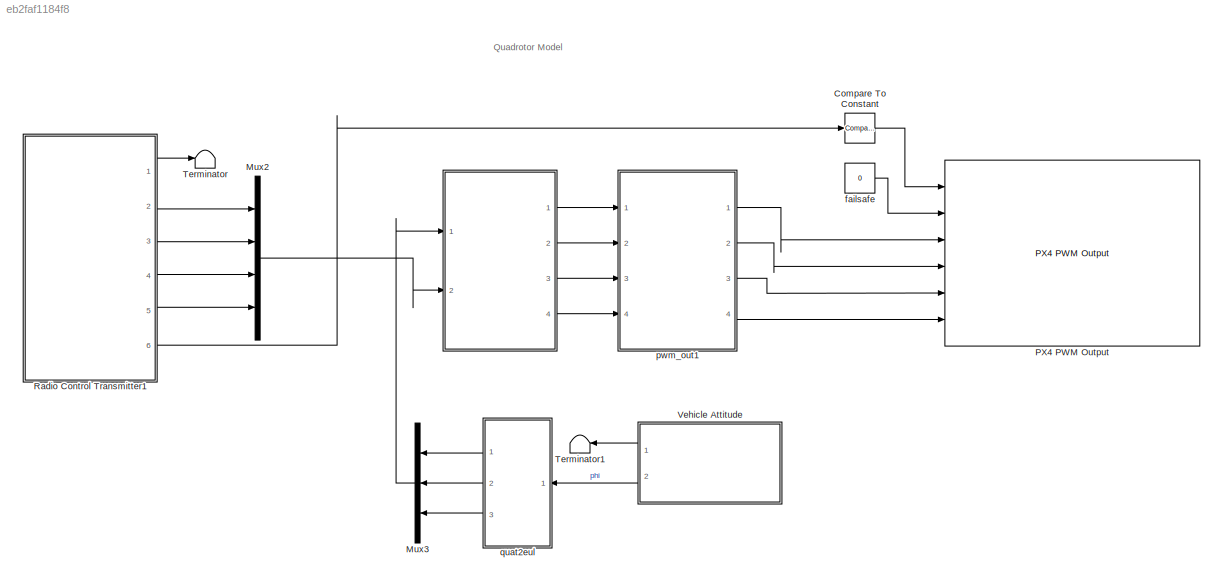
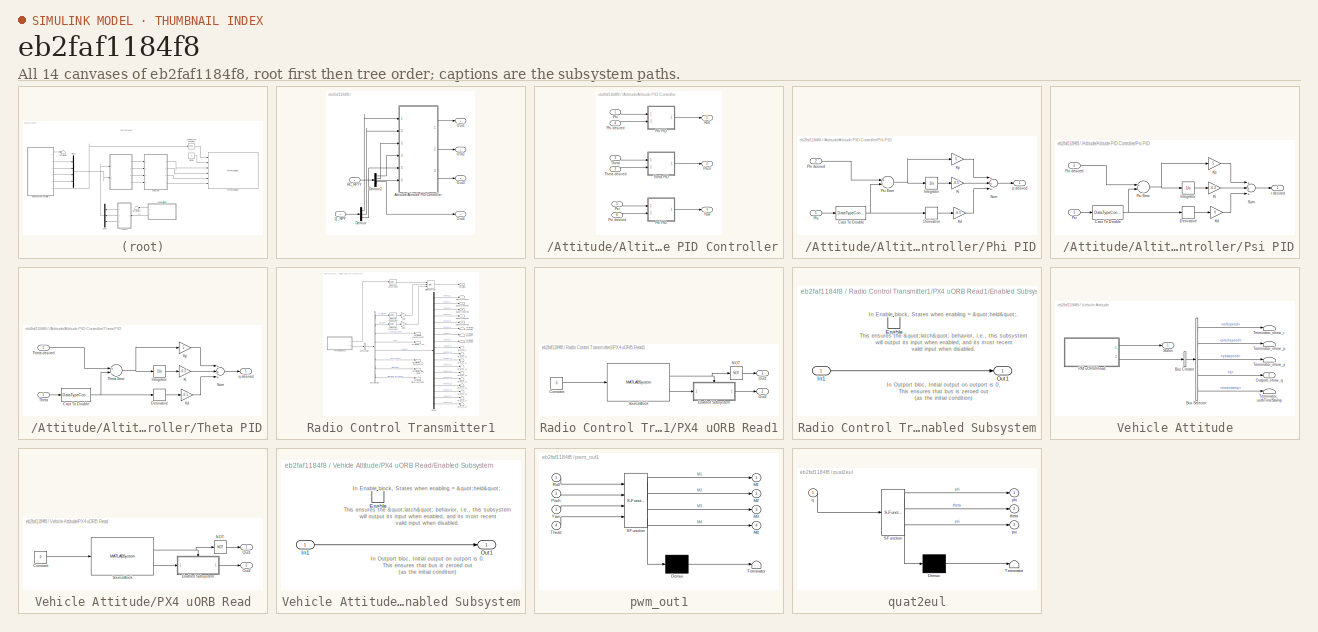
[diagram: thumbnail index - all 14 canvases of the model, root first then tree order]
MODEL slx_eb2faf1184f8
KIND model
CONFIG AbsTol = auto
CONFIG EnableMultiTasking = on
CONFIG FixedStep = 1
CONFIG MaxStep = auto
CONFIG MinStep = auto
CONFIG RelTol = 1e-3
CONFIG SampleTimeConstraint = Unconstrained
CONFIG Solver = FixedStepAuto
CONFIG SolverName = FixedStepAuto
CONFIG StartTime = 0.0
CONFIG StopTime = 10
BLOCK [SubSystem]  
  Ports = [2, 4]
  RequestExecContextInheritance = off
BLOCK [SubSystem]  /Attitude//Altitude PID Controller
  Ports = [6, 3]
  RequestExecContextInheritance = off
BLOCK [Inport]  /Attitude//Altitude PID Controller/Phi
  IconDisplay = Port number
BLOCK [SubSystem]  /Attitude//Altitude PID Controller/Phi PID
  Ports = [2, 1]
  RequestExecContextInheritance = off
BLOCK [DataTypeConversion]  /Attitude//Altitude PID Controller/Phi PID/Cast To Double
  OutDataTypeStr = double
  RndMeth = Floor
  SaturateOnIntegerOverflow = off
BLOCK [Derivative]  /Attitude//Altitude PID Controller/Phi PID/Derivative
BLOCK [Integrator]  /Attitude//Altitude PID Controller/Phi PID/Integrator
  Ports = [1, 1]
BLOCK [Gain]  /Attitude//Altitude PID Controller/Phi PID/Kd
  Gain = -0.5
  OutDataTypeStr = Inherit: Inherit via internal rule
  ParamDataTypeStr = Inherit: Inherit via internal rule
  SaturateOnIntegerOverflow = off
BLOCK [Gain]  /Attitude//Altitude PID Controller/Phi PID/Ki
  Gain = -0.5
  OutDataTypeStr = Inherit: Inherit via internal rule
  ParamDataTypeStr = Inherit: Inherit via internal rule
  SaturateOnIntegerOverflow = off
BLOCK [Gain]  /Attitude//Altitude PID Controller/Phi PID/Kp
  Gain = 5
  OutDataTypeStr = Inherit: Inherit via internal rule
  ParamDataTypeStr = Inherit: Inherit via internal rule
  SaturateOnIntegerOverflow = off
BLOCK [Inport]  /Attitude//Altitude PID Controller/Phi PID/Phi
  IconDisplay = Port number
BLOCK [Inport]  /Attitude//Altitude PID Controller/Phi PID/Phi desired
  IconDisplay = Port number
  Port = 2
BLOCK [Sum]  /Attitude//Altitude PID Controller/Phi PID/Psi Error
  InputSameDT = off
  Inputs = +-
  OutDataTypeStr = Inherit: Inherit via internal rule
  Ports = [2, 1]
  SaturateOnIntegerOverflow = off
BLOCK [Sum]  /Attitude//Altitude PID Controller/Phi PID/Sum
  InputSameDT = off
  Inputs = +++
  OutDataTypeStr = Inherit: Inherit via internal rule
  Ports = [3, 1]
  SaturateOnIntegerOverflow = off
BLOCK [Outport]  /Attitude//Altitude PID Controller/Phi PID/p desired
  IconDisplay = Port number
BLOCK [Inport]  /Attitude//Altitude PID Controller/Phi desired
  IconDisplay = Port number
  Port = 4
BLOCK [Outport]  /Attitude//Altitude PID Controller/Pitch
  IconDisplay = Port number
  Port = 2
BLOCK [Inport]  /Attitude//Altitude PID Controller/Psi
  IconDisplay = Port number
  Port = 5
BLOCK [SubSystem]  /Attitude//Altitude PID Controller/Psi PID
  Ports = [2, 1]
  RequestExecContextInheritance = off
BLOCK [DataTypeConversion]  /Attitude//Altitude PID Controller/Psi PID/Cast To Double
  OutDataTypeStr = double
  RndMeth = Floor
  SaturateOnIntegerOverflow = off
BLOCK [Derivative]  /Attitude//Altitude PID Controller/Psi PID/Derivative
BLOCK [Integrator]  /Attitude//Altitude PID Controller/Psi PID/Integrator
  Ports = [1, 1]
BLOCK [Gain]  /Attitude//Altitude PID Controller/Psi PID/Kd
  Gain = 0
  OutDataTypeStr = Inherit: Inherit via internal rule
  ParamDataTypeStr = Inherit: Inherit via internal rule
  SaturateOnIntegerOverflow = off
BLOCK [Gain]  /Attitude//Altitude PID Controller/Psi PID/Ki
  Gain = -0.2
  OutDataTypeStr = Inherit: Inherit via internal rule
  ParamDataTypeStr = Inherit: Inherit via internal rule
  SaturateOnIntegerOverflow = off
BLOCK [Gain]  /Attitude//Altitude PID Controller/Psi PID/Kp
  Gain = 5
  OutDataTypeStr = Inherit: Inherit via internal rule
  ParamDataTypeStr = Inherit: Inherit via internal rule
  SaturateOnIntegerOverflow = off
BLOCK [Inport]  /Attitude//Altitude PID Controller/Psi PID/Psi
  IconDisplay = Port number
BLOCK [Sum]  /Attitude//Altitude PID Controller/Psi PID/Psi Error
  InputSameDT = off
  Inputs = +-
  OutDataTypeStr = Inherit: Inherit via internal rule
  Ports = [2, 1]
  SaturateOnIntegerOverflow = off
BLOCK [Inport]  /Attitude//Altitude PID Controller/Psi PID/Psi desired
  IconDisplay = Port number
  Port = 2
BLOCK [Sum]  /Attitude//Altitude PID Controller/Psi PID/Sum
  InputSameDT = off
  Inputs = +++
  OutDataTypeStr = Inherit: Inherit via internal rule
  Ports = [3, 1]
  SaturateOnIntegerOverflow = off
BLOCK [Outport]  /Attitude//Altitude PID Controller/Psi PID/r desired
  IconDisplay = Port number
BLOCK [Inport]  /Attitude//Altitude PID Controller/Psi desired
  IconDisplay = Port number
  Port = 6
BLOCK [Outport]  /Attitude//Altitude PID Controller/Roll
  IconDisplay = Port number
BLOCK [Inport]  /Attitude//Altitude PID Controller/Theta
  IconDisplay = Port number
  Port = 2
BLOCK [SubSystem]  /Attitude//Altitude PID Controller/Theta PID
  Ports = [2, 1]
  RequestExecContextInheritance = off
BLOCK [DataTypeConversion]  /Attitude//Altitude PID Controller/Theta PID/Cast To Double
  OutDataTypeStr = double
  RndMeth = Floor
  SaturateOnIntegerOverflow = off
BLOCK [Derivative]  /Attitude//Altitude PID Controller/Theta PID/Derivative
BLOCK [Integrator]  /Attitude//Altitude PID Controller/Theta PID/Integrator
  Ports = [1, 1]
BLOCK [Gain]  /Attitude//Altitude PID Controller/Theta PID/Kd
  Gain = -0.5
  OutDataTypeStr = Inherit: Inherit via internal rule
  ParamDataTypeStr = Inherit: Inherit via internal rule
  SaturateOnIntegerOverflow = off
BLOCK [Gain]  /Attitude//Altitude PID Controller/Theta PID/Ki
  Gain = -0.5
  OutDataTypeStr = Inherit: Inherit via internal rule
  ParamDataTypeStr = Inherit: Inherit via internal rule
  SaturateOnIntegerOverflow = off
BLOCK [Gain]  /Attitude//Altitude PID Controller/Theta PID/Kp
  Gain = 5
  OutDataTypeStr = Inherit: Inherit via internal rule
  ParamDataTypeStr = Inherit: Inherit via internal rule
  SaturateOnIntegerOverflow = off
BLOCK [Sum]  /Attitude//Altitude PID Controller/Theta PID/Sum
  InputSameDT = off
  Inputs = +++
  OutDataTypeStr = Inherit: Inherit via internal rule
  Ports = [3, 1]
  SaturateOnIntegerOverflow = off
BLOCK [Inport]  /Attitude//Altitude PID Controller/Theta PID/Theta
  IconDisplay = Port number
BLOCK [Sum]  /Attitude//Altitude PID Controller/Theta PID/Theta Error
  InputSameDT = off
  Inputs = +-
  OutDataTypeStr = Inherit: Inherit via internal rule
  Ports = [2, 1]
  SaturateOnIntegerOverflow = off
BLOCK [Inport]  /Attitude//Altitude PID Controller/Theta PID/Theta desired
  IconDisplay = Port number
  Port = 2
BLOCK [Outport]  /Attitude//Altitude PID Controller/Theta PID/q desired
  IconDisplay = Port number
BLOCK [Inport]  /Attitude//Altitude PID Controller/Theta desired
  IconDisplay = Port number
  Port = 3
BLOCK [Outport]  /Attitude//Altitude PID Controller/Yaw
  IconDisplay = Port number
  Port = 3
BLOCK [Demux]  /Demux
  DisplayOption = bar
  Outputs = 3
  Ports = [1, 3]
BLOCK [Demux]  /Demux2
  DisplayOption = bar
  Ports = [1, 4]
BLOCK [Outport]  /Out1
  IconDisplay = Port number
BLOCK [Outport]  /Out2
  IconDisplay = Port number
  Port = 2
BLOCK [Outport]  /Out3
  IconDisplay = Port number
  Port = 3
BLOCK [Outport]  /Out4
  IconDisplay = Port number
  Port = 4
BLOCK [Inport]  /Q_RPY
  IconDisplay = Port number
BLOCK [Inport]  /RC_RPTY
  IconDisplay = Port number
  Port = 2
BLOCK [Reference] Compare To Constant  REF=simulink/Logic and Bit
Operations/Compare
To Constant
  Ports = [1, 1]
  SourceBlock = simulink/Logic and Bit\nOperations/Compare\nTo Constant
  SourceProductBaseCode = SL
  SourceProductName = Simulink
  SourceType = Compare To Constant
BLOCK [Mux] Mux2
  DisplayOption = bar
  Ports = [4, 1]
BLOCK [Mux] Mux3
  DisplayOption = bar
  Inputs = 3
  Ports = [3, 1]
BLOCK [Reference] PX4 PWM Output  REF=px4lib/PX4 PWM Output
  Ports = [6]
  SourceBlock = px4lib/PX4 PWM Output
  SourceProductBaseCode = PX4AUTOPILOTS
  SourceProductName = Embedded Coder Support Package for PX4 Autopilots
  SourceType = PX4 PWM Output
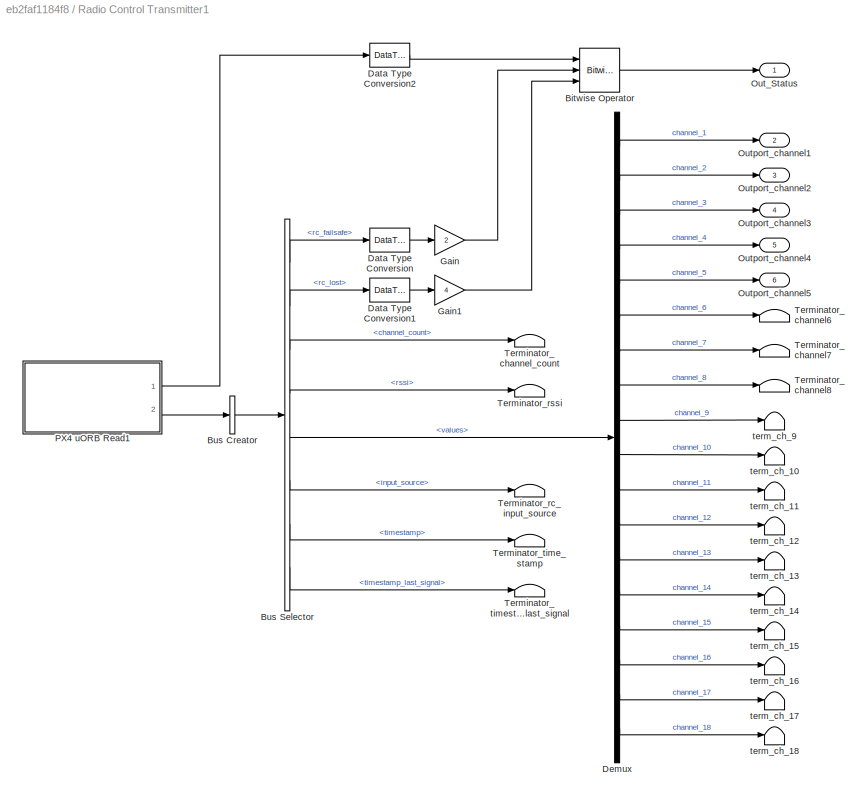
BLOCK [SubSystem] Radio Control Transmitter1
  AncestorBlock = px4Sensorslib/Radio Control Transmitter
  Ports = [0, 6]
  RequestExecContextInheritance = off
BLOCK [Reference] Radio Control Transmitter1/Bitwise Operator  REF=simulink/Logic and Bit
Operations/Bitwise
Operator
  Ports = [3, 1]
  SourceBlock = simulink/Logic and Bit\nOperations/Bitwise\nOperator
  SourceProductBaseCode = SL
  SourceProductName = Simulink
  SourceType = Bitwise Operator
BLOCK [BusCreator] Radio Control Transmitter1/Bus Creator
  DisplayOption = bar
  InheritFromInputs = on
  Inputs = 1
  Ports = [1, 1]
BLOCK [BusSelector] Radio Control Transmitter1/Bus Selector
  OutputAsBus = off
  OutputSignals = rc_failsafe,rc_lost,channel_count,rssi,values,input_source,timestamp,timestamp_last_signal
  Ports = [1, 8]
BLOCK [DataTypeConversion] Radio Control Transmitter1/Data Type Conversion
  OutDataTypeStr = uint8
  RndMeth = Floor
  SaturateOnIntegerOverflow = off
BLOCK [DataTypeConversion] Radio Control Transmitter1/Data Type Conversion1
  OutDataTypeStr = uint8
  RndMeth = Floor
  SaturateOnIntegerOverflow = off
BLOCK [DataTypeConversion] Radio Control Transmitter1/Data Type Conversion2
  OutDataTypeStr = uint8
  RndMeth = Floor
  SaturateOnIntegerOverflow = off
BLOCK [Demux] Radio Control Transmitter1/Demux
  DisplayOption = bar
  Outputs = 18
  Ports = [1, 18]
BLOCK [Gain] Radio Control Transmitter1/Gain
  Gain = 2
  OutDataTypeStr = uint8
  ParamDataTypeStr = Inherit: Inherit via internal rule
  SaturateOnIntegerOverflow = off
BLOCK [Gain] Radio Control Transmitter1/Gain1
  Gain = 4
  OutDataTypeStr = uint8
  ParamDataTypeStr = Inherit: Inherit via internal rule
  SaturateOnIntegerOverflow = off
BLOCK [Outport] Radio Control Transmitter1/Out_Status
  IconDisplay = Port number
BLOCK [Outport] Radio Control Transmitter1/Outport_channel1
  IconDisplay = Port number
  Port = 2
BLOCK [Outport] Radio Control Transmitter1/Outport_channel2
  IconDisplay = Port number
  Port = 3
BLOCK [Outport] Radio Control Transmitter1/Outport_channel3
  IconDisplay = Port number
  Port = 4
BLOCK [Outport] Radio Control Transmitter1/Outport_channel4
  IconDisplay = Port number
  Port = 5
BLOCK [Outport] Radio Control Transmitter1/Outport_channel5
  IconDisplay = Port number
  Port = 6
BLOCK [SubSystem] Radio Control Transmitter1/PX4 uORB Read1
  AncestorBlock = px4uORBlib/PX4 uORB Read
  ModelCloseFcn = px4.internal.block.SubscribeBlockMask.dispatch('modelCloseFcn', gcb);
  Ports = [0, 2]
  RequestExecContextInheritance = off
BLOCK [Constant] Radio Control Transmitter1/PX4 uORB Read1/Constant
  SampleTime = -1
  Value = 0
BLOCK [SubSystem] Radio Control Transmitter1/PX4 uORB Read1/Enabled Subsystem
  Ports = [1, 1, 1]
  RequestExecContextInheritance = off
  TreatAsAtomicUnit = on
BLOCK [EnablePort] Radio Control Transmitter1/PX4 uORB Read1/Enabled Subsystem/Enable
  Ports = []
BLOCK [Inport] Radio Control Transmitter1/PX4 uORB Read1/Enabled Subsystem/In1
  IconDisplay = Port number
BLOCK [Outport] Radio Control Transmitter1/PX4 uORB Read1/Enabled Subsystem/Out1
  IconDisplay = Port number
  InitialOutput = 0
BLOCK [Logic] Radio Control Transmitter1/PX4 uORB Read1/NOT
  AllPortsSameDT = off
  IconShape = distinctive
  Operator = NOT
  OutDataTypeStr = boolean
  Ports = [1, 1]
BLOCK [Outport] Radio Control Transmitter1/PX4 uORB Read1/Out1
  IconDisplay = Port number
BLOCK [Outport] Radio Control Transmitter1/PX4 uORB Read1/Out2
  IconDisplay = Port number
  Port = 2
BLOCK [MATLABSystem] Radio Control Transmitter1/PX4 uORB Read1/SourceBlock
  BlockTimeout = 1e-3
  BlockingMode = off
  InitFcn = px4.internal.block.SubscribeBlockMask.dispatch('sysobjInitFcn', gcb);
  MaskDisplay = disp('Subscriber');\nport_label('input',1,'busstruct');\nport_label('output',1,'isNewData');\nport_label('output',2,'msg');
  MaskType = px4.internal.block.Subscriber
  Ports = [1, 2]
  SLBusName = px4_Bus_input_rc
  SampleTime = -1
  System = px4.internal.block.Subscriber
  uORBTopic = input_rc
BLOCK [Terminator] Radio Control Transmitter1/Terminator_channel6
BLOCK [Terminator] Radio Control Transmitter1/Terminator_channel7
BLOCK [Terminator] Radio Control Transmitter1/Terminator_channel8
BLOCK [Terminator] Radio Control Transmitter1/Terminator_channel_count
BLOCK [Terminator] Radio Control Transmitter1/Terminator_rc_input_source
BLOCK [Terminator] Radio Control Transmitter1/Terminator_rssi
BLOCK [Terminator] Radio Control Transmitter1/Terminator_time_stamp
BLOCK [Terminator] Radio Control Transmitter1/Terminator_timestamp_last_signal
BLOCK [Terminator] Radio Control Transmitter1/term_ch_10 
BLOCK [Terminator] Radio Control Transmitter1/term_ch_11
BLOCK [Terminator] Radio Control Transmitter1/term_ch_12
BLOCK [Terminator] Radio Control Transmitter1/term_ch_13
BLOCK [Terminator] Radio Control Transmitter1/term_ch_14
BLOCK [Terminator] Radio Control Transmitter1/term_ch_15
BLOCK [Terminator] Radio Control Transmitter1/term_ch_16
BLOCK [Terminator] Radio Control Transmitter1/term_ch_17
BLOCK [Terminator] Radio Control Transmitter1/term_ch_18
BLOCK [Terminator] Radio Control Transmitter1/term_ch_9
BLOCK [Terminator] Terminator
BLOCK [Terminator] Terminator1
BLOCK [SubSystem] Vehicle Attitude
  AncestorBlock = px4Sensorslib/Vehicle Attitude
  Ports = [0, 2]
  RequestExecContextInheritance = off
BLOCK [BusCreator] Vehicle Attitude/Bus Creator
  DisplayOption = bar
  InheritFromInputs = on
  Inputs = 1
  Ports = [1, 1]
BLOCK [BusSelector] Vehicle Attitude/Bus Selector
  OutputAsBus = off
  OutputSignals = rollspeed,pitchspeed,yawspeed,q,timestamp
  Ports = [1, 5]
BLOCK [Outport] Vehicle Attitude/Outport_show_q
  IconDisplay = Port number
  Port = 2
BLOCK [SubSystem] Vehicle Attitude/PX4 uORB Read
  AncestorBlock = px4uORBlib/PX4 uORB Read
  ModelCloseFcn = px4.internal.block.SubscribeBlockMask.dispatch('modelCloseFcn', gcb);
  Ports = [0, 2]
  RequestExecContextInheritance = off
BLOCK [Constant] Vehicle Attitude/PX4 uORB Read/Constant
  SampleTime = -1
  Value = 0
BLOCK [SubSystem] Vehicle Attitude/PX4 uORB Read/Enabled Subsystem
  Ports = [1, 1, 1]
  RequestExecContextInheritance = off
  TreatAsAtomicUnit = on
BLOCK [EnablePort] Vehicle Attitude/PX4 uORB Read/Enabled Subsystem/Enable
  Ports = []
BLOCK [Inport] Vehicle Attitude/PX4 uORB Read/Enabled Subsystem/In1
  IconDisplay = Port number
BLOCK [Outport] Vehicle Attitude/PX4 uORB Read/Enabled Subsystem/Out1
  IconDisplay = Port number
  InitialOutput = 0
BLOCK [Logic] Vehicle Attitude/PX4 uORB Read/NOT
  AllPortsSameDT = off
  IconShape = distinctive
  Operator = NOT
  OutDataTypeStr = boolean
  Ports = [1, 1]
BLOCK [Outport] Vehicle Attitude/PX4 uORB Read/Out1
  IconDisplay = Port number
BLOCK [Outport] Vehicle Attitude/PX4 uORB Read/Out2
  IconDisplay = Port number
  Port = 2
BLOCK [MATLABSystem] Vehicle Attitude/PX4 uORB Read/SourceBlock
  BlockTimeout = 0.001
  BlockingMode = off
  InitFcn = px4.internal.block.SubscribeBlockMask.dispatch('sysobjInitFcn', gcb);
  MaskDisplay = disp('Subscriber');\nport_label('input',1,'busstruct');\nport_label('output',1,'isNewData');\nport_label('output',2,'msg');
  MaskType = px4.internal.block.Subscriber
  Ports = [1, 2]
  SLBusName = px4_Bus_vehicle_attitude
  SampleTime = -1
  System = px4.internal.block.Subscriber
  uORBTopic = vehicle_attitude
BLOCK [Outport] Vehicle Attitude/Status
  IconDisplay = Port number
BLOCK [Terminator] Vehicle Attitude/Terminator_show_p
BLOCK [Terminator] Vehicle Attitude/Terminator_show_r
BLOCK [Terminator] Vehicle Attitude/Terminator_show_y
BLOCK [Terminator] Vehicle Attitude/Terminator_uorbTimeStamp
BLOCK [Constant] failsafe
  OutDataTypeStr = boolean
  SampleTime = -1
  Value = 0
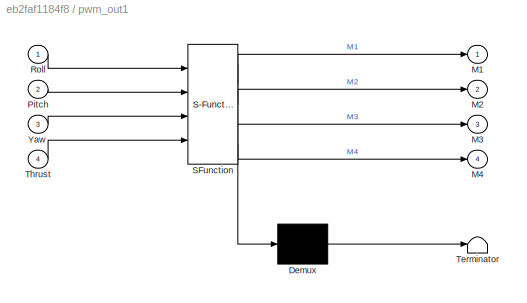
BLOCK [SubSystem] pwm_out1
  ErrorFcn = Stateflow.Translate.translate
  PermitHierarchicalResolution = ExplicitOnly
  Ports = [4, 4]
  RequestExecContextInheritance = off
  SFBlockType = MATLAB Function
  TreatAsAtomicUnit = on
BLOCK [Demux] pwm_out1/ Demux 
  Outputs = 1
  Ports = [1, 1]
BLOCK [S-Function] pwm_out1/ SFunction 
  EnableBusSupport = off
  FunctionName = sf_sfun
  PortCounts = [4 5]
  Ports = [4, 5]
  SFcnIsStateOwnerBlock = off
  SFunctionDeploymentMode = off
  Tag = Stateflow S-Function quadrotorsim_Equations_New_V6B_RC_Only_4_30 4
BLOCK [Terminator] pwm_out1/ Terminator 
BLOCK [Outport] pwm_out1/M1
  IconDisplay = Port number
BLOCK [Outport] pwm_out1/M2
  IconDisplay = Port number
  Port = 2
BLOCK [Outport] pwm_out1/M3
  IconDisplay = Port number
  Port = 3
BLOCK [Outport] pwm_out1/M4
  IconDisplay = Port number
  Port = 4
BLOCK [Inport] pwm_out1/Pitch
  IconDisplay = Port number
  Port = 2
BLOCK [Inport] pwm_out1/Roll
  IconDisplay = Port number
BLOCK [Inport] pwm_out1/Thrust
  IconDisplay = Port number
  Port = 4
BLOCK [Inport] pwm_out1/Yaw
  IconDisplay = Port number
  Port = 3
BLOCK [SubSystem] quat2eul
  ErrorFcn = Stateflow.Translate.translate
  PermitHierarchicalResolution = ExplicitOnly
  Ports = [1, 3]
  RequestExecContextInheritance = off
  SFBlockType = MATLAB Function
  TreatAsAtomicUnit = on
BLOCK [Demux] quat2eul/ Demux 
  Outputs = 1
  Ports = [1, 1]
BLOCK [S-Function] quat2eul/ SFunction 
  EnableBusSupport = off
  FunctionName = sf_sfun
  PortCounts = [1 4]
  Ports = [1, 4]
  SFcnIsStateOwnerBlock = off
  SFunctionDeploymentMode = off
  Tag = Stateflow S-Function quadrotorsim_Equations_New_V6B_RC_Only_4_30 10
BLOCK [Terminator] quat2eul/ Terminator 
BLOCK [Outport] quat2eul/phi
  IconDisplay = Port number
BLOCK [Outport] quat2eul/psi
  IconDisplay = Port number
  Port = 3
BLOCK [Inport] quat2eul/q
  IconDisplay = Port number
BLOCK [Outport] quat2eul/theta
  IconDisplay = Port number
  Port = 2
ANNOTATION (root): Quadrotor Model
ANNOTATION Radio Control Transmitter1/PX4 uORB Read1/Enabled Subsystem: In Enable block, States when enabling = "held". This ensures the "latch" behavior, i.e., this subsystem will output its input when enabled, and its most recent valid input when disabled.
ANNOTATION Radio Control Transmitter1/PX4 uORB Read1/Enabled Subsystem: In Outport bloc, Initial output on outport is 0. This ensures that bus is zeroed out (as the initial condition)
ANNOTATION Vehicle Attitude/PX4 uORB Read/Enabled Subsystem: In Enable block, States when enabling = "held". This ensures the "latch" behavior, i.e., this subsystem will output its input when enabled, and its most recent valid input when disabled.
ANNOTATION Vehicle Attitude/PX4 uORB Read/Enabled Subsystem: In Outport bloc, Initial output on outport is 0. This ensures that bus is zeroed out (as the initial condition)
NET  /Attitude//Altitude PID Controller/Phi PID/Cast To Double:1 ->  /Attitude//Altitude PID Controller/Phi PID/Derivative:1,  /Attitude//Altitude PID Controller/Phi PID/Psi Error:2
LINE  /Attitude//Altitude PID Controller/Phi PID/Derivative:1 ->  /Attitude//Altitude PID Controller/Phi PID/Kd:1
LINE  /Attitude//Altitude PID Controller/Phi PID/Integrator:1 ->  /Attitude//Altitude PID Controller/Phi PID/Ki:1
LINE  /Attitude//Altitude PID Controller/Phi PID/Kd:1 ->  /Attitude//Altitude PID Controller/Phi PID/Sum:3
LINE  /Attitude//Altitude PID Controller/Phi PID/Ki:1 ->  /Attitude//Altitude PID Controller/Phi PID/Sum:2
LINE  /Attitude//Altitude PID Controller/Phi PID/Kp:1 ->  /Attitude//Altitude PID Controller/Phi PID/Sum:1
LINE  /Attitude//Altitude PID Controller/Phi PID/Phi desired:1 ->  /Attitude//Altitude PID Controller/Phi PID/Psi Error:1
LINE  /Attitude//Altitude PID Controller/Phi PID/Phi:1 ->  /Attitude//Altitude PID Controller/Phi PID/Cast To Double:1
NET  /Attitude//Altitude PID Controller/Phi PID/Psi Error:1 ->  /Attitude//Altitude PID Controller/Phi PID/Integrator:1,  /Attitude//Altitude PID Controller/Phi PID/Kp:1
LINE  /Attitude//Altitude PID Controller/Phi PID/Sum:1 ->  /Attitude//Altitude PID Controller/Phi PID/p desired:1
LINE  /Attitude//Altitude PID Controller/Phi PID:1 ->  /Attitude//Altitude PID Controller/Roll:1
LINE  /Attitude//Altitude PID Controller/Phi desired:1 ->  /Attitude//Altitude PID Controller/Phi PID:2
LINE  /Attitude//Altitude PID Controller/Phi:1 ->  /Attitude//Altitude PID Controller/Phi PID:1
NET  /Attitude//Altitude PID Controller/Psi PID/Cast To Double:1 ->  /Attitude//Altitude PID Controller/Psi PID/Derivative:1,  /Attitude//Altitude PID Controller/Psi PID/Psi Error:2
LINE  /Attitude//Altitude PID Controller/Psi PID/Derivative:1 ->  /Attitude//Altitude PID Controller/Psi PID/Kd:1
LINE  /Attitude//Altitude PID Controller/Psi PID/Integrator:1 ->  /Attitude//Altitude PID Controller/Psi PID/Ki:1
LINE  /Attitude//Altitude PID Controller/Psi PID/Kd:1 ->  /Attitude//Altitude PID Controller/Psi PID/Sum:3
LINE  /Attitude//Altitude PID Controller/Psi PID/Ki:1 ->  /Attitude//Altitude PID Controller/Psi PID/Sum:2
LINE  /Attitude//Altitude PID Controller/Psi PID/Kp:1 ->  /Attitude//Altitude PID Controller/Psi PID/Sum:1
NET  /Attitude//Altitude PID Controller/Psi PID/Psi Error:1 ->  /Attitude//Altitude PID Controller/Psi PID/Integrator:1,  /Attitude//Altitude PID Controller/Psi PID/Kp:1
LINE  /Attitude//Altitude PID Controller/Psi PID/Psi desired:1 ->  /Attitude//Altitude PID Controller/Psi PID/Psi Error:1
LINE  /Attitude//Altitude PID Controller/Psi PID/Psi:1 ->  /Attitude//Altitude PID Controller/Psi PID/Cast To Double:1
LINE  /Attitude//Altitude PID Controller/Psi PID/Sum:1 ->  /Attitude//Altitude PID Controller/Psi PID/r desired:1
LINE  /Attitude//Altitude PID Controller/Psi PID:1 ->  /Attitude//Altitude PID Controller/Yaw:1
LINE  /Attitude//Altitude PID Controller/Psi desired:1 ->  /Attitude//Altitude PID Controller/Psi PID:2
LINE  /Attitude//Altitude PID Controller/Psi:1 ->  /Attitude//Altitude PID Controller/Psi PID:1
NET  /Attitude//Altitude PID Controller/Theta PID/Cast To Double:1 ->  /Attitude//Altitude PID Controller/Theta PID/Derivative:1,  /Attitude//Altitude PID Controller/Theta PID/Theta Error:2
LINE  /Attitude//Altitude PID Controller/Theta PID/Derivative:1 ->  /Attitude//Altitude PID Controller/Theta PID/Kd:1
LINE  /Attitude//Altitude PID Controller/Theta PID/Integrator:1 ->  /Attitude//Altitude PID Controller/Theta PID/Ki:1
LINE  /Attitude//Altitude PID Controller/Theta PID/Kd:1 ->  /Attitude//Altitude PID Controller/Theta PID/Sum:3
LINE  /Attitude//Altitude PID Controller/Theta PID/Ki:1 ->  /Attitude//Altitude PID Controller/Theta PID/Sum:2
LINE  /Attitude//Altitude PID Controller/Theta PID/Kp:1 ->  /Attitude//Altitude PID Controller/Theta PID/Sum:1
LINE  /Attitude//Altitude PID Controller/Theta PID/Sum:1 ->  /Attitude//Altitude PID Controller/Theta PID/q desired:1
NET  /Attitude//Altitude PID Controller/Theta PID/Theta Error:1 ->  /Attitude//Altitude PID Controller/Theta PID/Integrator:1,  /Attitude//Altitude PID Controller/Theta PID/Kp:1
LINE  /Attitude//Altitude PID Controller/Theta PID/Theta desired:1 ->  /Attitude//Altitude PID Controller/Theta PID/Theta Error:1
LINE  /Attitude//Altitude PID Controller/Theta PID/Theta:1 ->  /Attitude//Altitude PID Controller/Theta PID/Cast To Double:1
LINE  /Attitude//Altitude PID Controller/Theta PID:1 ->  /Attitude//Altitude PID Controller/Pitch:1
LINE  /Attitude//Altitude PID Controller/Theta desired:1 ->  /Attitude//Altitude PID Controller/Theta PID:2
LINE  /Attitude//Altitude PID Controller/Theta:1 ->  /Attitude//Altitude PID Controller/Theta PID:1
LINE  /Attitude//Altitude PID Controller:1 ->  /Out1:1
LINE  /Attitude//Altitude PID Controller:2 ->  /Out2:1
LINE  /Attitude//Altitude PID Controller:3 ->  /Out3:1
LINE  /Demux2:1 ->  /Attitude//Altitude PID Controller:4
LINE  /Demux2:2 ->  /Attitude//Altitude PID Controller:3
LINE  /Demux2:3 ->  /Out4:1
LINE  /Demux2:4 ->  /Attitude//Altitude PID Controller:6
LINE  /Demux:1 ->  /Attitude//Altitude PID Controller:1
LINE  /Demux:2 ->  /Attitude//Altitude PID Controller:2
LINE  /Demux:3 ->  /Attitude//Altitude PID Controller:5
LINE  /Q_RPY:1 ->  /Demux:1
LINE  /RC_RPTY:1 ->  /Demux2:1
LINE  :1 -> pwm_out1:1
LINE  :2 -> pwm_out1:2
LINE  :3 -> pwm_out1:3
LINE  :4 -> pwm_out1:4
LINE Compare To Constant:1 -> PX4 PWM Output:1
LINE Mux2:1 ->  :2
LINE Mux3:1 ->  :1
LINE Radio Control Transmitter1:1 -> Terminator:1
LINE Radio Control Transmitter1:2 -> Mux2:1
LINE Radio Control Transmitter1:3 -> Mux2:2
LINE Radio Control Transmitter1:4 -> Mux2:3
LINE Radio Control Transmitter1:5 -> Mux2:4
LINE Radio Control Transmitter1:6 -> Compare To Constant:1
LINE Vehicle Attitude:1 -> Terminator1:1
LINE Vehicle Attitude:2 -> quat2eul:1
LINE failsafe:1 -> PX4 PWM Output:2
LINE pwm_out1:1 -> PX4 PWM Output:3
LINE pwm_out1:2 -> PX4 PWM Output:4
LINE pwm_out1:3 -> PX4 PWM Output:5
LINE pwm_out1:4 -> PX4 PWM Output:6
LINE quat2eul:1 -> Mux3:1
LINE quat2eul:2 -> Mux3:2
LINE quat2eul:3 -> Mux3:3
note: NET lines group one-source signal fan-out (src -> all destinations, sorted); 1:1 wires keep LINE
CHART pwm_out1 states=1 transitions=1
  STATE_LABEL 'eML_blk_kernel()'
  STATE_LABEL 'SCRIPT:\nfunction [M1, M2, M3, M4] = motor_mixer(Roll, Pitch, Yaw, Thrust)\n\n\nidle_PWM = uint16(1000);\n\n\n% Quad X\nM1 = ((Roll + Pitch - Yaw) / 2 * Thrust + Thrust) * 1000 + idle_PWM;\nM2 = ((-Roll + Pitch + Yaw) / 2 * Thrust + Thrust) * 1000 + idle_PWM;\nM3 = ((-Roll - Pitch - Yaw) / 2 * Thrust + Thrust) * 1000 + idle_PWM;\nM4 = ((Roll - Pitch + Yaw) / 2 * Thrust + Thrust) * 1000 + idle_PWM;\n% M5 = 100...<+1917ch>'
CHART quat2eul states=1 transitions=1
  STATE_LABEL 'eML_blk_kernel()'
  STATE_LABEL 'SCRIPT:\nfunction [phi,theta,psi] = quat2eul(q)\n% Conversion from Quaternion to Euler angles based on the PX4 Firmware\n% v1.6.5 release.\n% \n% Quaternion -> DCM -> Euler Angles\n% INPUT:\n%   q: Quaternion vector of the format: (a + bi + cj + dk)\n% OUTPUT:\n%   [phi,theta,psi]: Euler angles in radians.\n% \n \n    a = q(1);\n    b = q(2);\n    c = q(3);\n    d = q(4);\n\n    aSq = a*a;\n    bSq = b*b;\n    cSq =...<+673ch>'
